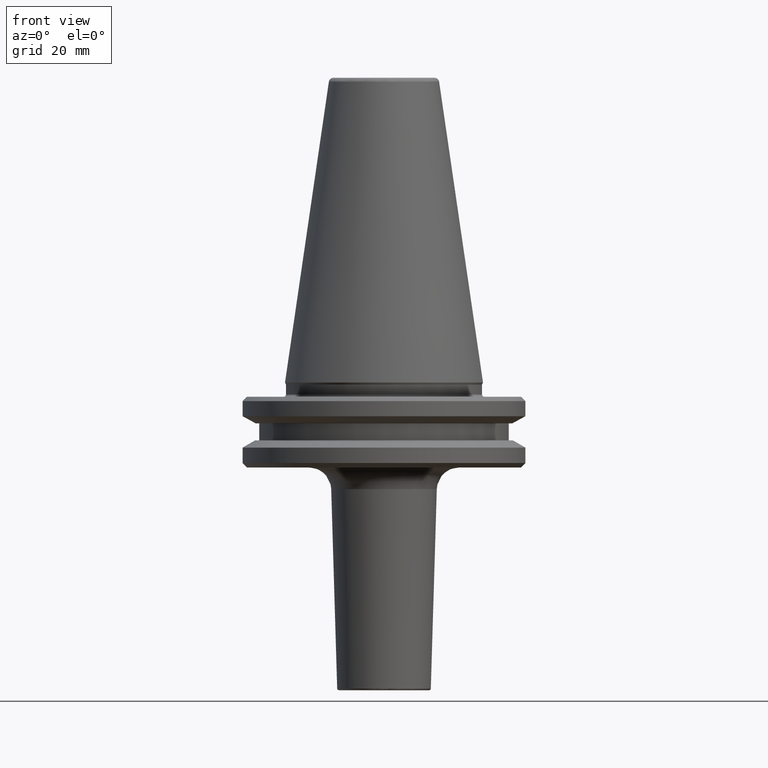
[diagram: clean part render]
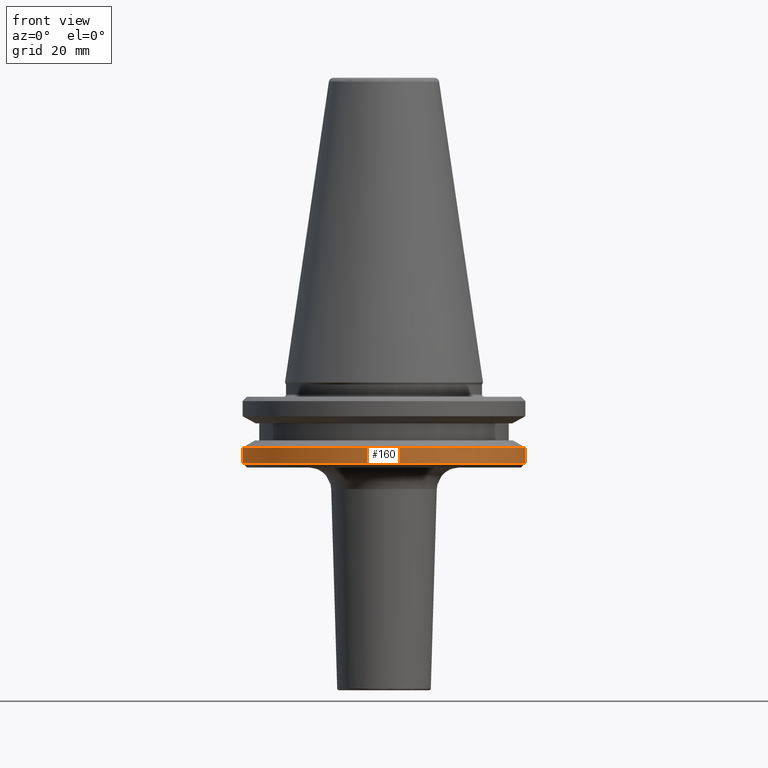
[diagram: same view with one face highlighted and labeled with its STEP entity id]
A machine part, front view. The second image highlights one B-rep face of the part: STEP entity #160.
In plain terms, the highlighted cylindrical surface (partial cylindrical patch) has radius 31.75 mm, axis along (0, 0, 1).
Its self-contained STEP definition (entity closure, byte-faithful):
#1 = DIRECTION ( 'NONE',  ( -0.0000000000000000000, -0.0000000000000000000, 1.000000000000000000 ) ) ;
#8 = CARTESIAN_POINT ( 'NONE',  ( 0.0000000000000000000, 0.0000000000000000000, -18.10000000000055900 ) ) ;
#27 = CARTESIAN_POINT ( 'NONE',  ( -31.75000000000000700, 3.888253587292847300E-015, -14.62183664205671500 ) ) ;
#38 = CARTESIAN_POINT ( 'NONE',  ( 0.0000000000000000000, 0.0000000000000000000, 113.5216080541959500 ) ) ;
#97 = VECTOR ( 'NONE', #1134, 1000.000000000000000 ) ;
#143 = CIRCLE ( 'NONE', #1318, 31.75000000000000700 ) ;
#160 = ADVANCED_FACE ( 'NONE', ( #1380 ), #578, .T. ) ;
#309 = EDGE_CURVE ( 'NONE', #1519, #1387, #143, .T. ) ;
#322 = LINE ( 'NONE', #1394, #97 ) ;
#336 = CARTESIAN_POINT ( 'NONE',  ( 31.75000000000000700, 0.0000000000000000000, -14.62183664205671500 ) ) ;
#383 = EDGE_CURVE ( 'NONE', #1294, #1519, #322, .T. ) ;
#455 = CARTESIAN_POINT ( 'NONE',  ( 31.74999999999947400, 0.0000000000000000000, -18.10000000000055900 ) ) ;
#578 = CYLINDRICAL_SURFACE ( 'NONE', #981, 31.75000000000000000 ) ;
#596 = DIRECTION ( 'NONE',  ( 1.000000000000000000, 0.0000000000000000000, 0.0000000000000000000 ) ) ;
#617 = DIRECTION ( 'NONE',  ( 0.0000000000000000000, 0.0000000000000000000, 1.000000000000000000 ) ) ;
#899 = ORIENTED_EDGE ( 'NONE', *, *, #309, .F. ) ;
#907 = VERTEX_POINT ( 'NONE', #455 ) ;
#917 = CARTESIAN_POINT ( 'NONE',  ( -31.74999999999947400, 3.888253587292781800E-015, -18.10000000000055900 ) ) ;
#924 = CARTESIAN_POINT ( 'NONE',  ( 31.75000000000000000, 0.0000000000000000000, 113.5216080541959500 ) ) ;
#928 = DIRECTION ( 'NONE',  ( 0.0000000000000000000, 0.0000000000000000000, 1.000000000000000000 ) ) ;
#938 = ORIENTED_EDGE ( 'NONE', *, *, #383, .F. ) ;
#958 = AXIS2_PLACEMENT_3D ( 'NONE', #8, #1, #1109 ) ;
#981 = AXIS2_PLACEMENT_3D ( 'NONE', #38, #617, #596 ) ;
#990 = EDGE_LOOP ( 'NONE', ( #938, #1237, #1437, #899 ) ) ;
#1059 = VECTOR ( 'NONE', #928, 1000.000000000000000 ) ;
#1109 = DIRECTION ( 'NONE',  ( 1.000000000000000000, 0.0000000000000000000, 0.0000000000000000000 ) ) ;
#1134 = DIRECTION ( 'NONE',  ( 0.0000000000000000000, 0.0000000000000000000, 1.000000000000000000 ) ) ;
#1169 = LINE ( 'NONE', #924, #1059 ) ;
#1183 = DIRECTION ( 'NONE',  ( -1.000000000000000000, 0.0000000000000000000, 0.0000000000000000000 ) ) ;
#1237 = ORIENTED_EDGE ( 'NONE', *, *, #1455, .T. ) ;
#1246 = EDGE_CURVE ( 'NONE', #907, #1387, #1169, .T. ) ;
#1294 = VERTEX_POINT ( 'NONE', #917 ) ;
#1318 = AXIS2_PLACEMENT_3D ( 'NONE', #1358, #1323, #1183 ) ;
#1323 = DIRECTION ( 'NONE',  ( -0.0000000000000000000, -0.0000000000000000000, 1.000000000000000000 ) ) ;
#1358 = CARTESIAN_POINT ( 'NONE',  ( 0.0000000000000000000, 0.0000000000000000000, -14.62183664205671500 ) ) ;
#1380 = FACE_OUTER_BOUND ( 'NONE', #990, .T. ) ;
#1387 = VERTEX_POINT ( 'NONE', #336 ) ;
#1394 = CARTESIAN_POINT ( 'NONE',  ( -31.75000000000000000, 3.888253587292846500E-015, 113.5216080541959500 ) ) ;
#1437 = ORIENTED_EDGE ( 'NONE', *, *, #1246, .T. ) ;
#1455 = EDGE_CURVE ( 'NONE', #1294, #907, #1464, .T. ) ;
#1464 = CIRCLE ( 'NONE', #958, 31.75000000000005700 ) ;
#1519 = VERTEX_POINT ( 'NONE', #27 ) ;